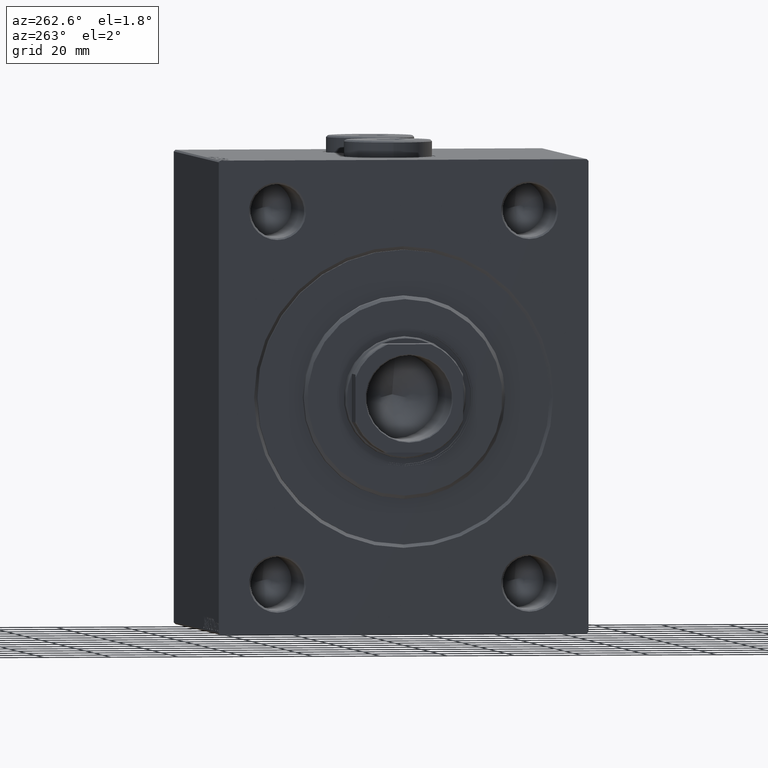
[diagram: clean part render]
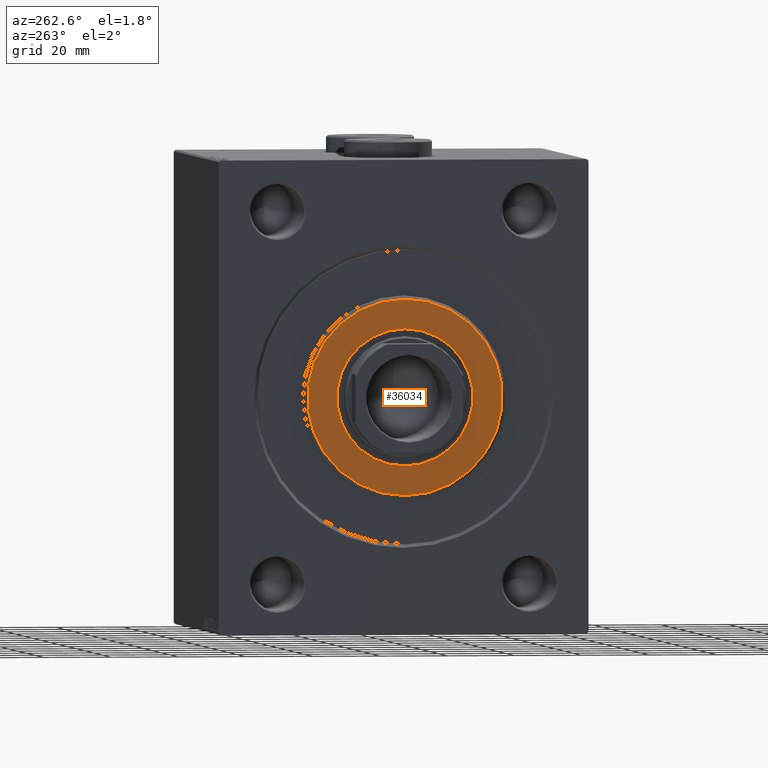
[diagram: same view with one face highlighted and labeled with its STEP entity id]
A machine part, auxiliary view. The second image highlights one B-rep face of the part: STEP entity #36034.
In plain terms, the highlighted planar face has unit normal (-1, 0, 0).
Its self-contained STEP definition (entity closure, byte-faithful):
#298 = CIRCLE ( 'NONE', #33363, 20.25000000000000000 ) ;
#1027 = AXIS2_PLACEMENT_3D ( 'NONE', #10910, #39647, #35752 ) ;
#2393 = CIRCLE ( 'NONE', #11979, 29.00000000000002132 ) ;
#3472 = VERTEX_POINT ( 'NONE', #14000 ) ;
#4965 = DIRECTION ( 'NONE',  ( 0.000000000000000000, 0.000000000000000000, -1.000000000000000000 ) ) ;
#5930 = AXIS2_PLACEMENT_3D ( 'NONE', #26668, #26437, #33352 ) ;
#9079 = AXIS2_PLACEMENT_3D ( 'NONE', #36926, #22886, #4965 ) ;
#9291 = DIRECTION ( 'NONE',  ( 0.000000000000000000, 0.000000000000000000, -1.000000000000000000 ) ) ;
#10733 = CARTESIAN_POINT ( 'NONE',  ( 3.000000000000000000, 0.000000000000000000, 0.000000000000000000 ) ) ;
#10910 = CARTESIAN_POINT ( 'NONE',  ( 3.000000000000000000, 0.000000000000000000, 0.000000000000000000 ) ) ;
#11200 = DIRECTION ( 'NONE',  ( 1.000000000000000000, 0.000000000000000000, 0.000000000000000000 ) ) ;
#11822 = FACE_BOUND ( 'NONE', #21382, .T. ) ;
#11979 = AXIS2_PLACEMENT_3D ( 'NONE', #36692, #33465, #9291 ) ;
#11991 = EDGE_CURVE ( 'NONE', #18978, #23961, #41918, .T. ) ;
#14000 = CARTESIAN_POINT ( 'NONE',  ( 3.000000000000000000, 0.000000000000000000, -20.25000000000000000 ) ) ;
#15268 = FACE_OUTER_BOUND ( 'NONE', #42216, .T. ) ;
#16790 = CARTESIAN_POINT ( 'NONE',  ( 3.000000000000000000, 0.000000000000000000, 29.00000000000002132 ) ) ;
#17058 = EDGE_CURVE ( 'NONE', #3472, #32050, #28939, .T. ) ;
#17379 = ORIENTED_EDGE ( 'NONE', *, *, #17058, .F. ) ;
#18041 = PLANE ( 'NONE',  #1027 ) ;
#18978 = VERTEX_POINT ( 'NONE', #36055 ) ;
#21382 = EDGE_LOOP ( 'NONE', ( #17379, #37573 ) ) ;
#22886 = DIRECTION ( 'NONE',  ( 1.000000000000000000, 0.000000000000000000, 0.000000000000000000 ) ) ;
#23961 = VERTEX_POINT ( 'NONE', #16790 ) ;
#26437 = DIRECTION ( 'NONE',  ( 1.000000000000000000, -0.000000000000000000, 0.000000000000000000 ) ) ;
#26668 = CARTESIAN_POINT ( 'NONE',  ( 3.000000000000000000, 0.000000000000000000, 0.000000000000000000 ) ) ;
#28939 = CIRCLE ( 'NONE', #9079, 20.25000000000000000 ) ;
#31083 = CARTESIAN_POINT ( 'NONE',  ( 3.000000000000000000, 2.479909768273390300E-15, 20.25000000000000000 ) ) ;
#31574 = ORIENTED_EDGE ( 'NONE', *, *, #33855, .T. ) ;
#32050 = VERTEX_POINT ( 'NONE', #31083 ) ;
#33352 = DIRECTION ( 'NONE',  ( 0.000000000000000000, 0.000000000000000000, -1.000000000000000000 ) ) ;
#33363 = AXIS2_PLACEMENT_3D ( 'NONE', #10733, #11200, #35802 ) ;
#33465 = DIRECTION ( 'NONE',  ( 1.000000000000000000, -0.000000000000000000, 0.000000000000000000 ) ) ;
#33855 = EDGE_CURVE ( 'NONE', #23961, #18978, #2393, .T. ) ;
#35752 = DIRECTION ( 'NONE',  ( 0.000000000000000000, 0.000000000000000000, -1.000000000000000000 ) ) ;
#35802 = DIRECTION ( 'NONE',  ( 0.000000000000000000, 0.000000000000000000, -1.000000000000000000 ) ) ;
#36034 = ADVANCED_FACE ( 'NONE', ( #15268, #11822 ), #18041, .T. ) ;
#36055 = CARTESIAN_POINT ( 'NONE',  ( 3.000000000000000000, 3.612708057484693181E-15, -29.00000000000002132 ) ) ;
#36692 = CARTESIAN_POINT ( 'NONE',  ( 3.000000000000000000, 0.000000000000000000, 0.000000000000000000 ) ) ;
#36926 = CARTESIAN_POINT ( 'NONE',  ( 3.000000000000000000, 0.000000000000000000, 0.000000000000000000 ) ) ;
#37324 = EDGE_CURVE ( 'NONE', #32050, #3472, #298, .T. ) ;
#37573 = ORIENTED_EDGE ( 'NONE', *, *, #37324, .F. ) ;
#39647 = DIRECTION ( 'NONE',  ( 1.000000000000000000, -0.000000000000000000, 0.000000000000000000 ) ) ;
#41918 = CIRCLE ( 'NONE', #5930, 29.00000000000002132 ) ;
#42216 = EDGE_LOOP ( 'NONE', ( #31574, #44002 ) ) ;
#44002 = ORIENTED_EDGE ( 'NONE', *, *, #11991, .T. ) ;